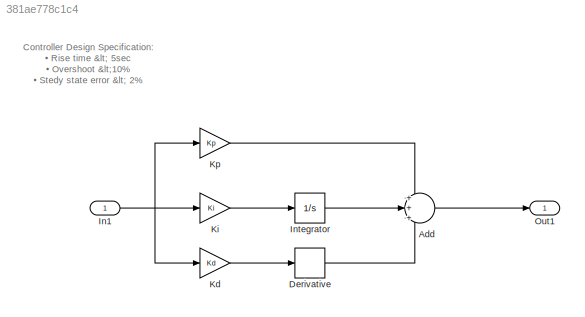
MODEL slx_381ae778c1c4
KIND model
CONFIG AbsTol = auto
CONFIG EnableMultiTasking = off
CONFIG FixedStep = auto
CONFIG MaxStep = auto
CONFIG MinStep = auto
CONFIG PreLoadFcn = m = 1000;\nb = 50;\nu = 500;
CONFIG RelTol = 1e-3
CONFIG SampleTimeConstraint = Unconstrained
CONFIG Solver = VariableStepAuto
CONFIG SolverName = VariableStepAuto
CONFIG StartTime = 0.0
CONFIG StopTime = 100
BLOCK [Sum] Add
  Inputs = +++
  Ports = [3, 1]
BLOCK [Derivative] Derivative
BLOCK [Inport] In1
  OutDataTypeStr = double
  PortDimensions = 1
  SampleTime = 0
  SamplingMode = Sample based
  SignalType = real
BLOCK [Integrator] Integrator
  Ports = [1, 1]
BLOCK [Gain] Kd
  Gain = Kd
BLOCK [Gain] Ki
  Gain = Ki
BLOCK [Gain] Kp
  Gain = Kp
BLOCK [Outport] Out1
  OutDataTypeStr = double
  PortDimensions = 1
  SampleTime = 0
  SamplingMode = Sample based
  SignalType = real
ANNOTATION (root): Controller Design Specification: • Rise time < 5sec • Overshoot <10% • Stedy state error < 2%
LINE Add:1 -> Out1:1
LINE Derivative:1 -> Add:3
NET In1:1 -> Kd:1, Ki:1, Kp:1
LINE Integrator:1 -> Add:2
LINE Kd:1 -> Derivative:1
LINE Ki:1 -> Integrator:1
LINE Kp:1 -> Add:1
note: NET lines group one-source signal fan-out (src -> all destinations, sorted); 1:1 wires keep LINE
